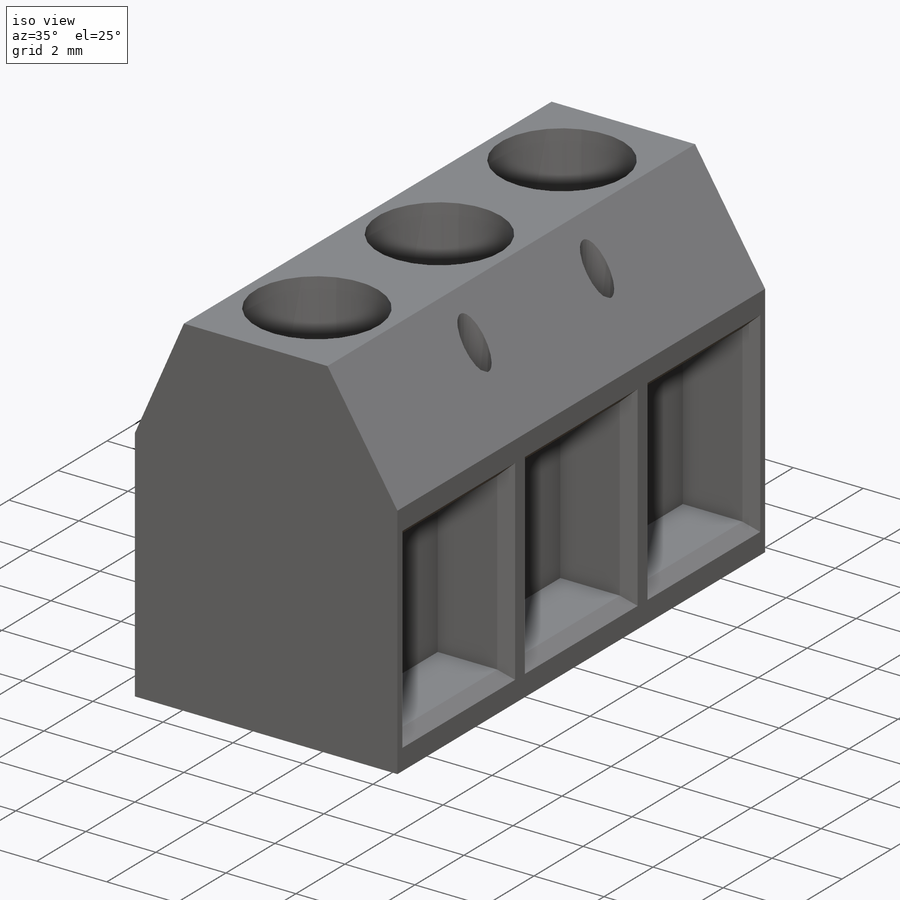
[diagram: iso view]
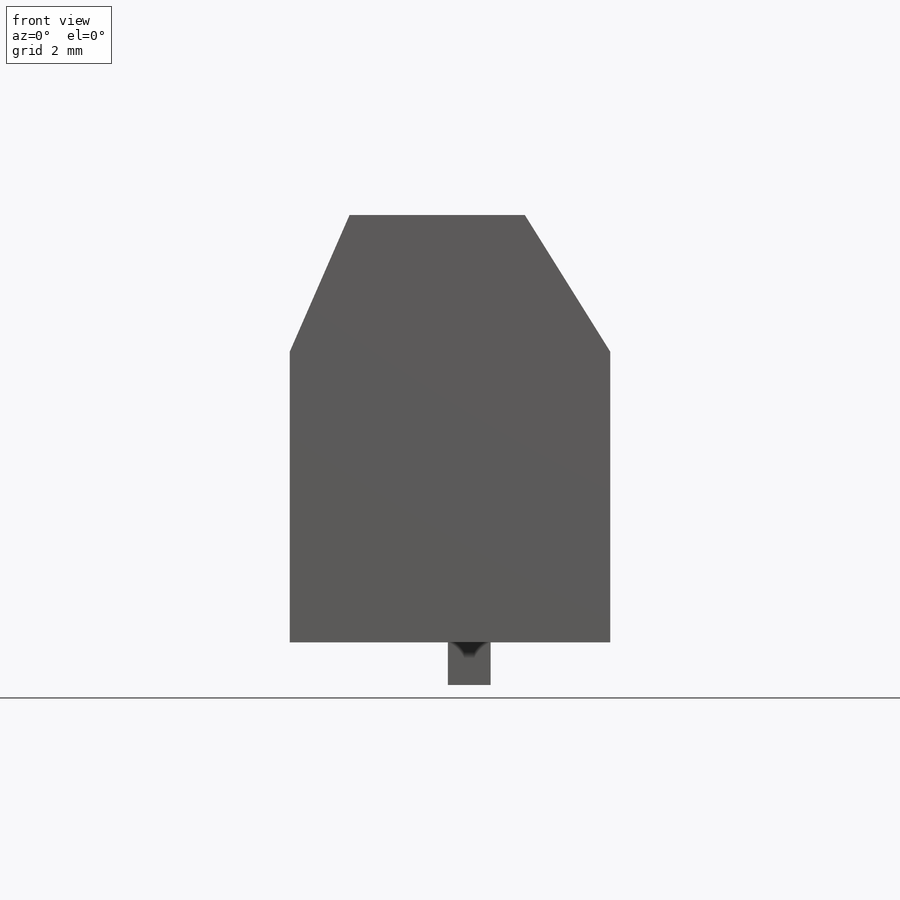
[diagram: front view]
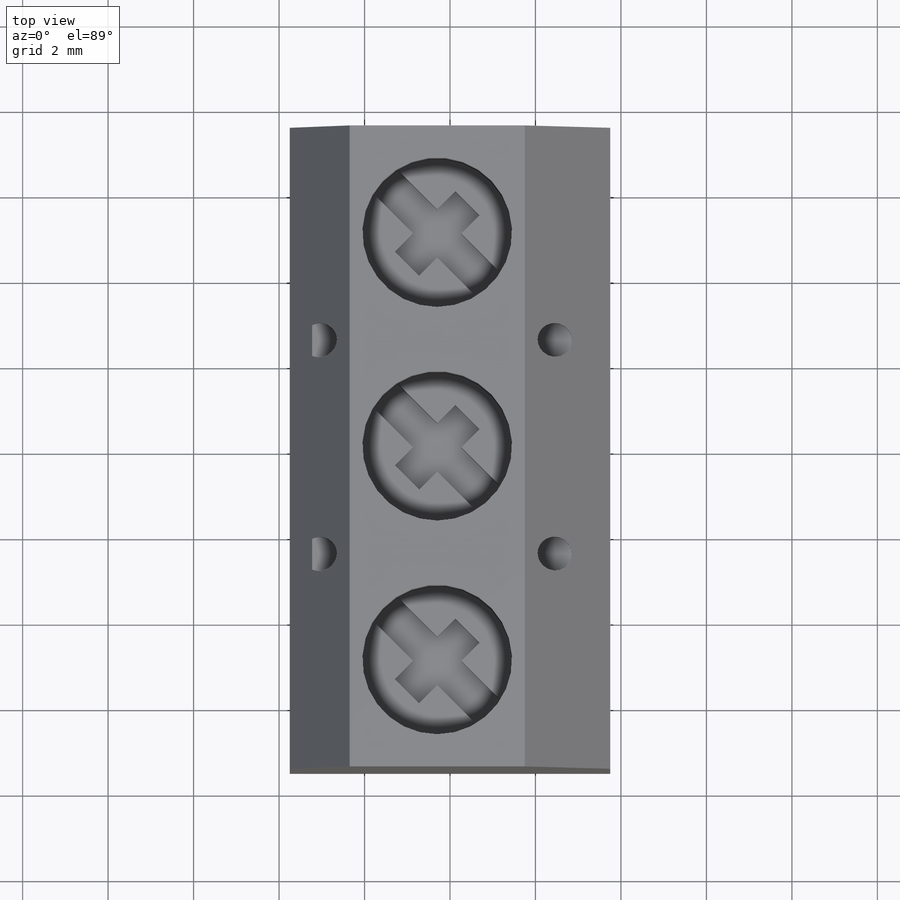
[diagram: top view]
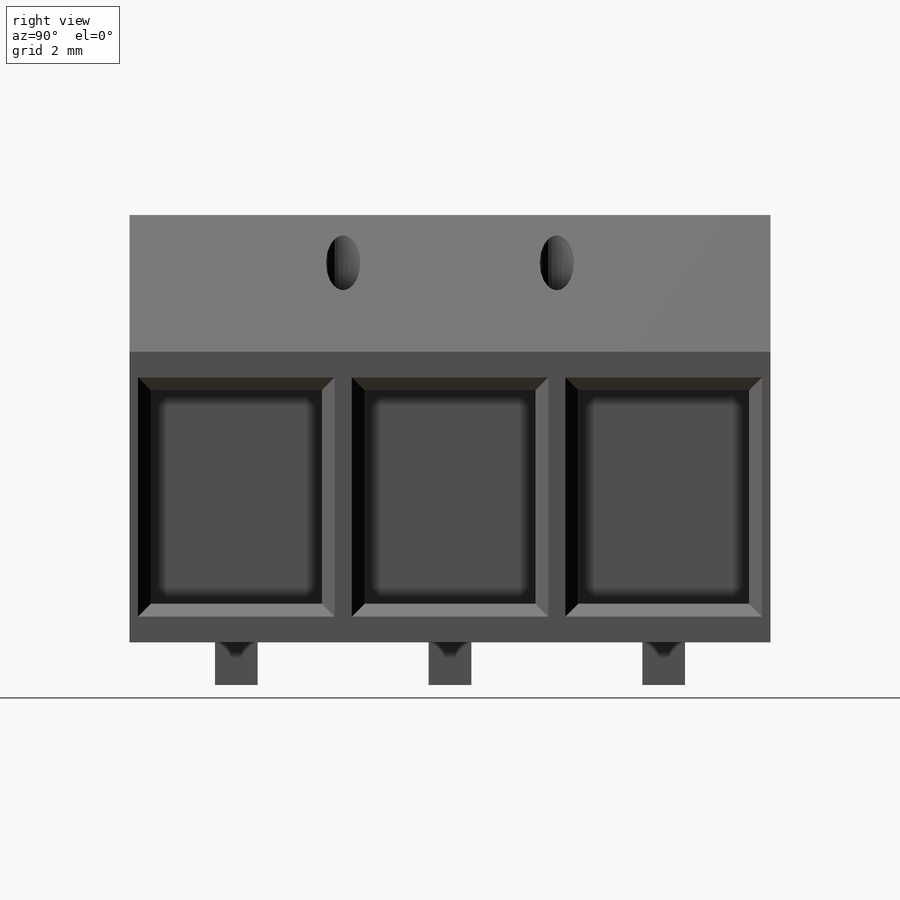
[diagram: right view]
SOLIDWORKS PART (.sldprt)
format: sldprt  version: not decoded by parser v0  size: 335,360 bytes
history: native  units: mm
features: sketch x5, cut_extrude x3, extrude x2, material x1, chamfer x1 (+12 scaffold rows collapsed)
feature tree (24):
  scaffold x12  (default folders/planes/origin — collapsed)
  material  "Material <not specified>"
  sketch  "Sketch1"  dims[c1.D1=1.0mm c1.D2=7.5mm c1.D3=10.0mm c1.D4=3.0mm c1.D5=~9.106897mm c2.D5=70.0deg c2.D6=10.0mm c3.D5=6.8mm c3.D4=6.0mm c4.D4=70.0deg c4.D1=1.4mm c5.D4=2.0mm]
  extrude  "Boss-Extrude1"  Depth=15mm
  sketch  "Sketch2"  dims[D1=5.0mm D2=5.0mm D3=1.0mm D4=3.3mm]
  extrude  "Boss-Extrude2"  Depth=1mm
  sketch  "Sketch3"  dims[D1=4.0mm D2=5.0mm D3=0.9mm D4=5.0mm]
  cut_extrude  "Cut-Extrude1"  Depth=2mm
  sketch  "Sketch4"  dims[c1.D1=3.5mm c1.D3=3.5mm c1.D4=0.8mm c1.D8=0.8mm c1.D2=5.0mm c2.D3=5.0mm c2.D5=5.0mm c2.D6=2.5mm c2.D7=5.5mm c2.D8=2.75mm c2.D9=5.0mm]
  cut_extrude  "Cut-Extrude2"  Depth=2mm
  sketch  "Sketch5"  dims[c1.D1=1.75mm c2.D1=45.0deg c2.D2=0.8mm c3.D1=1.75mm c4.D1=45.0deg c4.D3=2.0mm c4.D4=0.8mm c4.D5=3.0]
  cut_extrude  "Cut-Extrude3"  Depth=0.5mm
  chamfer  "Chamfer1"  Distance=0.3mm Angle=45deg
decode coverage: 11 of 11 modeling features carry decoded parameters
note: ~ marks probable driven/reference dimensions
note: suppression state not decoded; provenance and decode notes live in map.json
